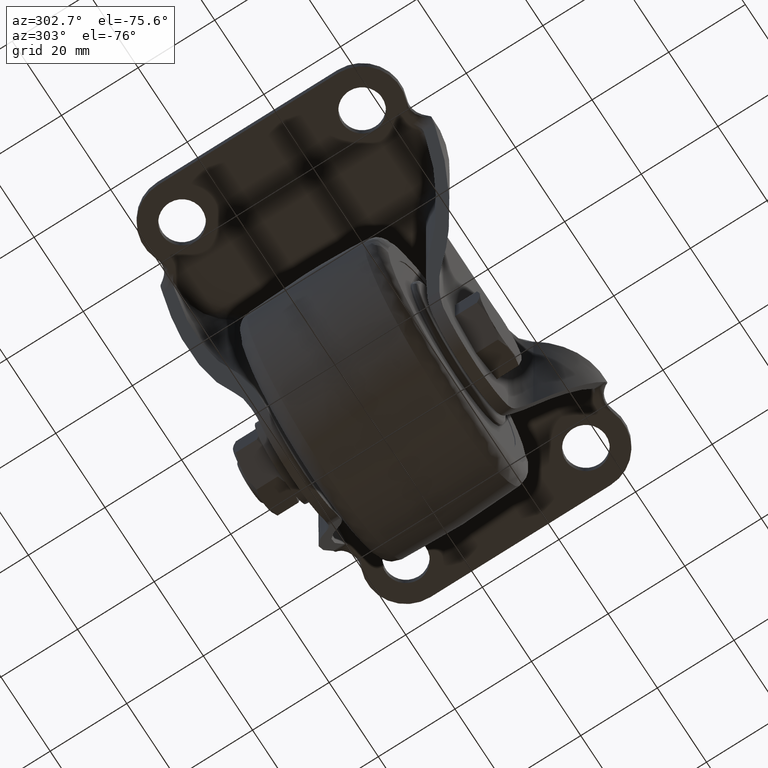
[diagram: clean part render]
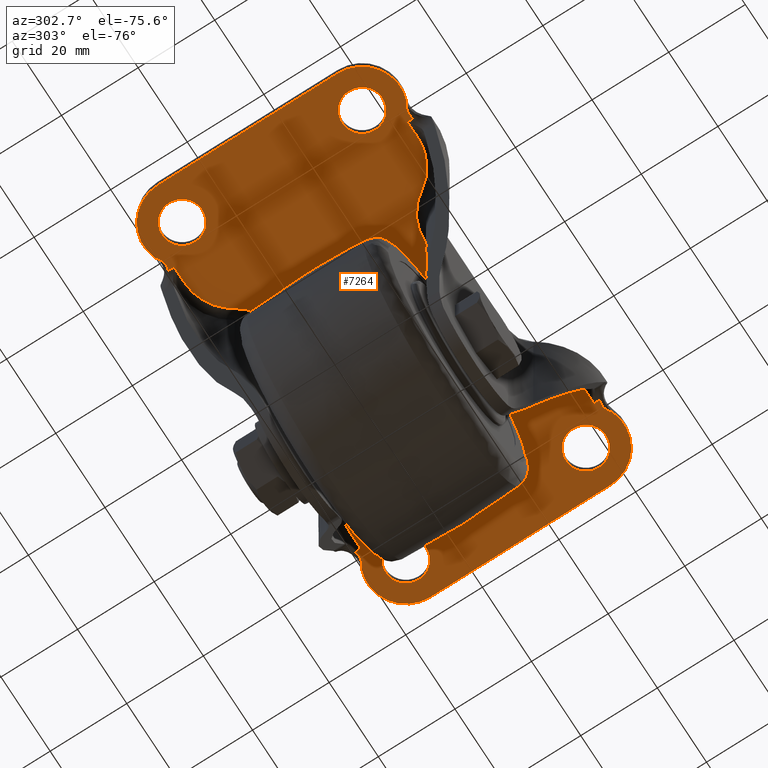
[diagram: same view with one face highlighted and labeled with its STEP entity id]
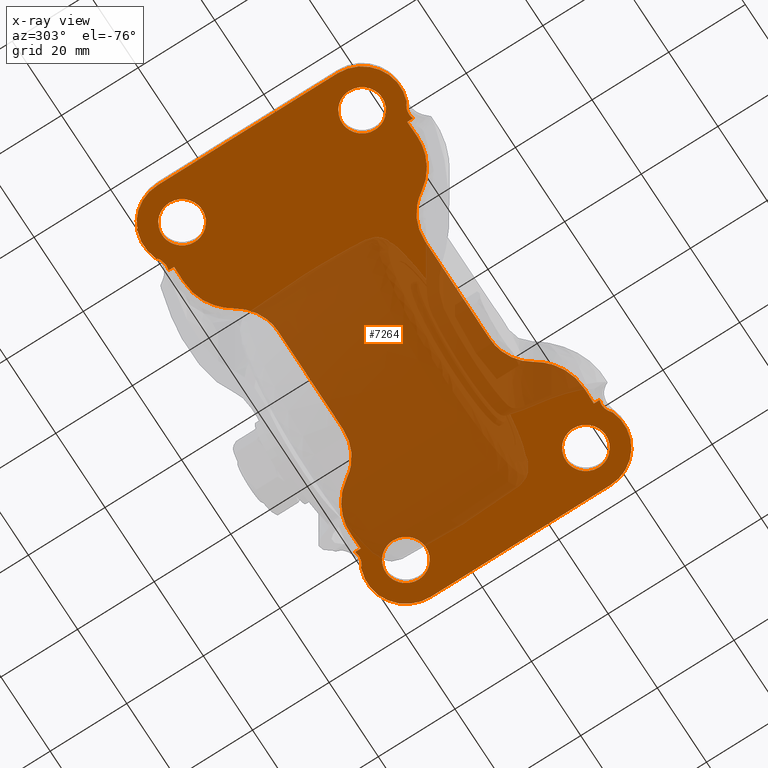
[diagram: x-ray of the same camera — body ghosted, the highlighted face saturated]
A machine part, auxiliary view. The second image highlights one B-rep face of the part: STEP entity #7264.
The next image is the same camera in x-ray: the body ghosted, the highlighted face saturated — about 48% of this face is hidden behind the body in this view.
In plain terms, the highlighted face is a freeform B-spline surface patch.
Its self-contained STEP definition (entity closure, byte-faithful):
#2593=CARTESIAN_POINT('',(-45.179400167103282,28.740207691694081,-2.900000000000000));
#2594=VERTEX_POINT('',#2593);
#2600=CARTESIAN_POINT('',(-40.249905000000012,23.500000000000000,-2.900000000000000));
#2601=VERTEX_POINT('',#2600);
#2602=CARTESIAN_POINT('',(-40.249905000000012,23.500000000000000,-2.900000000000000));
#2603=CARTESIAN_POINT('',(-40.249904999999998,28.438706850935048,-2.900000000000001));
#2604=CARTESIAN_POINT('',(-45.179400167103260,28.740207691694089,-2.900000000000000));
#2612=(BOUNDED_CURVE()B_SPLINE_CURVE(2,(#2602,#2603,#2604),.UNSPECIFIED.,.F.,.U.)B_SPLINE_CURVE_WITH_KNOTS((3,3),(0.500000000000000,0.739332962230815),.UNSPECIFIED.)CURVE()GEOMETRIC_REPRESENTATION_ITEM()RATIONAL_B_SPLINE_CURVE((1.0,0.719603993296233,0.976072041649297))REPRESENTATION_ITEM(''));
#2613=EDGE_CURVE('',#2601,#2594,#2612,.T.);
#2615=CARTESIAN_POINT('',(-45.820409832896729,18.259792308305919,-2.900000000000000));
#2616=VERTEX_POINT('',#2615);
#2617=CARTESIAN_POINT('',(-45.820409832896736,18.259792308305919,-2.900000000000001));
#2618=CARTESIAN_POINT('',(-45.660307007487432,18.250000000000000,-2.900000000000000));
#2619=CARTESIAN_POINT('',(-45.499904999999998,18.250000000000000,-2.900000000000000));
#2620=CARTESIAN_POINT('',(-40.249905000000012,18.250000000000000,-2.900000000000001));
#2621=CARTESIAN_POINT('',(-40.249905000000012,23.500000000000000,-2.900000000000000));
#2629=(BOUNDED_CURVE()B_SPLINE_CURVE(2,(#2617,#2618,#2619,#2620,#2621),.UNSPECIFIED.,.F.,.U.)B_SPLINE_CURVE_WITH_KNOTS((3,2,3),(0.239332962230814,0.250000000000000,0.500000000000000),.UNSPECIFIED.)CURVE()GEOMETRIC_REPRESENTATION_ITEM()RATIONAL_B_SPLINE_CURVE((0.976072041649297,0.987502787890314,1.0,0.707106781186547,1.0))REPRESENTATION_ITEM(''));
#2630=EDGE_CURVE('',#2616,#2601,#2629,.T.);
#2674=CARTESIAN_POINT('',(-50.749904999999998,23.500000000000000,-2.900000000000000));
#2675=VERTEX_POINT('',#2674);
#2676=CARTESIAN_POINT('',(-50.749904999999998,23.500000000000000,-2.900000000000000));
#2677=CARTESIAN_POINT('',(-50.749904999999991,18.561293149064948,-2.900000000000000));
#2678=CARTESIAN_POINT('',(-45.820409832896736,18.259792308305915,-2.899999999999999));
#2686=(BOUNDED_CURVE()B_SPLINE_CURVE(2,(#2676,#2677,#2678),.UNSPECIFIED.,.F.,.U.)B_SPLINE_CURVE_WITH_KNOTS((3,3),(0.0,0.239332962230814),.UNSPECIFIED.)CURVE()GEOMETRIC_REPRESENTATION_ITEM()RATIONAL_B_SPLINE_CURVE((1.0,0.719603993296233,0.976072041649297))REPRESENTATION_ITEM(''));
#2687=EDGE_CURVE('',#2675,#2616,#2686,.T.);
#2689=CARTESIAN_POINT('',(-45.179400167103260,28.740207691694089,-2.900000000000000));
#2690=CARTESIAN_POINT('',(-45.339502992512571,28.750000000000007,-2.900000000000000));
#2691=CARTESIAN_POINT('',(-45.499904999999998,28.750000000000000,-2.900000000000000));
#2692=CARTESIAN_POINT('',(-50.749904999999984,28.750000000000000,-2.900000000000001));
#2693=CARTESIAN_POINT('',(-50.749904999999998,23.500000000000000,-2.900000000000000));
#2701=(BOUNDED_CURVE()B_SPLINE_CURVE(2,(#2689,#2690,#2691,#2692,#2693),.UNSPECIFIED.,.F.,.U.)B_SPLINE_CURVE_WITH_KNOTS((3,2,3),(0.739332962230815,0.750000000000000,1.0),.UNSPECIFIED.)CURVE()GEOMETRIC_REPRESENTATION_ITEM()RATIONAL_B_SPLINE_CURVE((0.976072041649297,0.987502787890315,1.0,0.707106781186547,1.0))REPRESENTATION_ITEM(''));
#2702=EDGE_CURVE('',#2594,#2675,#2701,.T.);
#2775=CARTESIAN_POINT('',(-45.179400167103267,-18.259792308305919,-2.900000000000000));
#2776=VERTEX_POINT('',#2775);
#2782=CARTESIAN_POINT('',(-40.249905000000012,-23.500000000000000,-2.900000000000000));
#2783=VERTEX_POINT('',#2782);
#2784=CARTESIAN_POINT('',(-40.249905000000012,-23.500000000000000,-2.900000000000000));
#2785=CARTESIAN_POINT('',(-40.249904999999998,-18.561293149064937,-2.900000000000001));
#2786=CARTESIAN_POINT('',(-45.179400167103260,-18.259792308305922,-2.900000000000000));
#2794=(BOUNDED_CURVE()B_SPLINE_CURVE(2,(#2784,#2785,#2786),.UNSPECIFIED.,.F.,.U.)B_SPLINE_CURVE_WITH_KNOTS((3,3),(0.500000000000000,0.739332962230815),.UNSPECIFIED.)CURVE()GEOMETRIC_REPRESENTATION_ITEM()RATIONAL_B_SPLINE_CURVE((1.0,0.719603993296233,0.976072041649297))REPRESENTATION_ITEM(''));
#2795=EDGE_CURVE('',#2783,#2776,#2794,.T.);
#2797=CARTESIAN_POINT('',(-45.820409832896729,-28.740207691694081,-2.900000000000000));
#2798=VERTEX_POINT('',#2797);
#2799=CARTESIAN_POINT('',(-45.820409832896736,-28.740207691694085,-2.899999999999999));
#2800=CARTESIAN_POINT('',(-45.660307007487432,-28.750000000000000,-2.900000000000000));
#2801=CARTESIAN_POINT('',(-45.499904999999998,-28.750000000000000,-2.900000000000000));
#2802=CARTESIAN_POINT('',(-40.249905000000012,-28.750000000000000,-2.900000000000001));
#2803=CARTESIAN_POINT('',(-40.249905000000012,-23.500000000000000,-2.900000000000000));
#2811=(BOUNDED_CURVE()B_SPLINE_CURVE(2,(#2799,#2800,#2801,#2802,#2803),.UNSPECIFIED.,.F.,.U.)B_SPLINE_CURVE_WITH_KNOTS((3,2,3),(0.239332962230814,0.250000000000000,0.500000000000000),.UNSPECIFIED.)CURVE()GEOMETRIC_REPRESENTATION_ITEM()RATIONAL_B_SPLINE_CURVE((0.976072041649297,0.987502787890314,1.0,0.707106781186547,1.0))REPRESENTATION_ITEM(''));
#2812=EDGE_CURVE('',#2798,#2783,#2811,.T.);
#2856=CARTESIAN_POINT('',(-50.749904999999998,-23.500000000000000,-2.900000000000000));
#2857=VERTEX_POINT('',#2856);
#2858=CARTESIAN_POINT('',(-50.749904999999998,-23.500000000000000,-2.900000000000000));
#2859=CARTESIAN_POINT('',(-50.749904999999991,-28.438706850935045,-2.900000000000000));
#2860=CARTESIAN_POINT('',(-45.820409832896736,-28.740207691694085,-2.899999999999999));
#2868=(BOUNDED_CURVE()B_SPLINE_CURVE(2,(#2858,#2859,#2860),.UNSPECIFIED.,.F.,.U.)B_SPLINE_CURVE_WITH_KNOTS((3,3),(0.0,0.239332962230814),.UNSPECIFIED.)CURVE()GEOMETRIC_REPRESENTATION_ITEM()RATIONAL_B_SPLINE_CURVE((1.0,0.719603993296233,0.976072041649297))REPRESENTATION_ITEM(''));
#2869=EDGE_CURVE('',#2857,#2798,#2868,.T.);
#2871=CARTESIAN_POINT('',(-45.179400167103260,-18.259792308305922,-2.900000000000000));
#2872=CARTESIAN_POINT('',(-45.339502992512557,-18.250000000000004,-2.900000000000000));
#2873=CARTESIAN_POINT('',(-45.499904999999998,-18.250000000000000,-2.900000000000000));
#2874=CARTESIAN_POINT('',(-50.749904999999984,-18.250000000000000,-2.900000000000001));
#2875=CARTESIAN_POINT('',(-50.749904999999998,-23.500000000000000,-2.900000000000000));
#2883=(BOUNDED_CURVE()B_SPLINE_CURVE(2,(#2871,#2872,#2873,#2874,#2875),.UNSPECIFIED.,.F.,.U.)B_SPLINE_CURVE_WITH_KNOTS((3,2,3),(0.739332962230814,0.750000000000000,1.0),.UNSPECIFIED.)CURVE()GEOMETRIC_REPRESENTATION_ITEM()RATIONAL_B_SPLINE_CURVE((0.976072041649297,0.987502787890314,1.0,0.707106781186547,1.0))REPRESENTATION_ITEM(''));
#2884=EDGE_CURVE('',#2776,#2857,#2883,.T.);
#2957=CARTESIAN_POINT('',(45.820599832896832,28.740207691694081,-2.900000000000000));
#2958=VERTEX_POINT('',#2957);
#2964=CARTESIAN_POINT('',(50.750095000000087,23.500000000000000,-2.900000000000000));
#2965=VERTEX_POINT('',#2964);
#2966=CARTESIAN_POINT('',(50.750095000000087,23.500000000000000,-2.900000000000000));
#2967=CARTESIAN_POINT('',(50.750095000000101,28.438706850935056,-2.900000000000000));
#2968=CARTESIAN_POINT('',(45.820599832896825,28.740207691694081,-2.900000000000000));
#2976=(BOUNDED_CURVE()B_SPLINE_CURVE(2,(#2966,#2967,#2968),.UNSPECIFIED.,.F.,.U.)B_SPLINE_CURVE_WITH_KNOTS((3,3),(0.500000000000000,0.739332962230814),.UNSPECIFIED.)CURVE()GEOMETRIC_REPRESENTATION_ITEM()RATIONAL_B_SPLINE_CURVE((1.0,0.719603993296233,0.976072041649297))REPRESENTATION_ITEM(''));
#2977=EDGE_CURVE('',#2965,#2958,#2976,.T.);
#2979=CARTESIAN_POINT('',(45.179590167103363,18.259792308305919,-2.900000000000000));
#2980=VERTEX_POINT('',#2979);
#2981=CARTESIAN_POINT('',(45.179590167103356,18.259792308305926,-2.900000000000000));
#2982=CARTESIAN_POINT('',(45.339692992512660,18.250000000000004,-2.900000000000001));
#2983=CARTESIAN_POINT('',(45.500095000000087,18.250000000000000,-2.900000000000000));
#2984=CARTESIAN_POINT('',(50.750095000000108,18.250000000000000,-2.900000000000001));
#2985=CARTESIAN_POINT('',(50.750095000000087,23.500000000000000,-2.900000000000000));
#2993=(BOUNDED_CURVE()B_SPLINE_CURVE(2,(#2981,#2982,#2983,#2984,#2985),.UNSPECIFIED.,.F.,.U.)B_SPLINE_CURVE_WITH_KNOTS((3,2,3),(0.239332962230814,0.250000000000000,0.500000000000000),.UNSPECIFIED.)CURVE()GEOMETRIC_REPRESENTATION_ITEM()RATIONAL_B_SPLINE_CURVE((0.976072041649297,0.987502787890314,1.0,0.707106781186547,1.0))REPRESENTATION_ITEM(''));
#2994=EDGE_CURVE('',#2980,#2965,#2993,.T.);
#3038=CARTESIAN_POINT('',(40.250095000000087,23.500000000000000,-2.900000000000000));
#3039=VERTEX_POINT('',#3038);
#3040=CARTESIAN_POINT('',(40.250095000000087,23.500000000000000,-2.900000000000000));
#3041=CARTESIAN_POINT('',(40.250095000000094,18.561293149064948,-2.900000000000000));
#3042=CARTESIAN_POINT('',(45.179590167103377,18.259792308305915,-2.900000000000000));
#3050=(BOUNDED_CURVE()B_SPLINE_CURVE(2,(#3040,#3041,#3042),.UNSPECIFIED.,.F.,.U.)B_SPLINE_CURVE_WITH_KNOTS((3,3),(0.0,0.239332962230815),.UNSPECIFIED.)CURVE()GEOMETRIC_REPRESENTATION_ITEM()RATIONAL_B_SPLINE_CURVE((1.0,0.719603993296233,0.976072041649297))REPRESENTATION_ITEM(''));
#3051=EDGE_CURVE('',#3039,#2980,#3050,.T.);
#3053=CARTESIAN_POINT('',(45.820599832896832,28.740207691694078,-2.900000000000000));
#3054=CARTESIAN_POINT('',(45.660497007487535,28.749999999999996,-2.900000000000000));
#3055=CARTESIAN_POINT('',(45.500095000000087,28.750000000000000,-2.900000000000000));
#3056=CARTESIAN_POINT('',(40.250095000000087,28.750000000000000,-2.900000000000001));
#3057=CARTESIAN_POINT('',(40.250095000000087,23.500000000000000,-2.900000000000000));
#3065=(BOUNDED_CURVE()B_SPLINE_CURVE(2,(#3053,#3054,#3055,#3056,#3057),.UNSPECIFIED.,.F.,.U.)B_SPLINE_CURVE_WITH_KNOTS((3,2,3),(0.739332962230814,0.750000000000000,1.0),.UNSPECIFIED.)CURVE()GEOMETRIC_REPRESENTATION_ITEM()RATIONAL_B_SPLINE_CURVE((0.976072041649297,0.987502787890314,1.0,0.707106781186547,1.0))REPRESENTATION_ITEM(''));
#3066=EDGE_CURVE('',#2958,#3039,#3065,.T.);
#3139=CARTESIAN_POINT('',(45.820599832896832,-18.259792308305919,-2.900000000000000));
#3140=VERTEX_POINT('',#3139);
#3146=CARTESIAN_POINT('',(50.750095000000087,-23.500000000000000,-2.900000000000000));
#3147=VERTEX_POINT('',#3146);
#3148=CARTESIAN_POINT('',(50.750095000000087,-23.500000000000000,-2.900000000000000));
#3149=CARTESIAN_POINT('',(50.750095000000101,-18.561293149064944,-2.900000000000000));
#3150=CARTESIAN_POINT('',(45.820599832896825,-18.259792308305922,-2.900000000000000));
#3158=(BOUNDED_CURVE()B_SPLINE_CURVE(2,(#3148,#3149,#3150),.UNSPECIFIED.,.F.,.U.)B_SPLINE_CURVE_WITH_KNOTS((3,3),(0.500000000000000,0.739332962230814),.UNSPECIFIED.)CURVE()GEOMETRIC_REPRESENTATION_ITEM()RATIONAL_B_SPLINE_CURVE((1.0,0.719603993296233,0.976072041649297))REPRESENTATION_ITEM(''));
#3159=EDGE_CURVE('',#3147,#3140,#3158,.T.);
#3161=CARTESIAN_POINT('',(45.179590167103363,-28.740207691694081,-2.900000000000000));
#3162=VERTEX_POINT('',#3161);
#3163=CARTESIAN_POINT('',(45.179590167103363,-28.740207691694078,-2.900000000000000));
#3164=CARTESIAN_POINT('',(45.339692992512660,-28.749999999999996,-2.900000000000000));
#3165=CARTESIAN_POINT('',(45.500095000000087,-28.750000000000000,-2.900000000000000));
#3166=CARTESIAN_POINT('',(50.750095000000108,-28.750000000000000,-2.900000000000001));
#3167=CARTESIAN_POINT('',(50.750095000000087,-23.500000000000000,-2.900000000000000));
#3175=(BOUNDED_CURVE()B_SPLINE_CURVE(2,(#3163,#3164,#3165,#3166,#3167),.UNSPECIFIED.,.F.,.U.)B_SPLINE_CURVE_WITH_KNOTS((3,2,3),(0.239332962230815,0.250000000000000,0.500000000000000),.UNSPECIFIED.)CURVE()GEOMETRIC_REPRESENTATION_ITEM()RATIONAL_B_SPLINE_CURVE((0.976072041649297,0.987502787890315,1.0,0.707106781186547,1.0))REPRESENTATION_ITEM(''));
#3176=EDGE_CURVE('',#3162,#3147,#3175,.T.);
#3220=CARTESIAN_POINT('',(40.250095000000087,-23.500000000000000,-2.900000000000000));
#3221=VERTEX_POINT('',#3220);
#3222=CARTESIAN_POINT('',(40.250095000000087,-23.500000000000000,-2.900000000000000));
#3223=CARTESIAN_POINT('',(40.250095000000094,-28.438706850935045,-2.900000000000000));
#3224=CARTESIAN_POINT('',(45.179590167103377,-28.740207691694085,-2.900000000000000));
#3232=(BOUNDED_CURVE()B_SPLINE_CURVE(2,(#3222,#3223,#3224),.UNSPECIFIED.,.F.,.U.)B_SPLINE_CURVE_WITH_KNOTS((3,3),(0.0,0.239332962230815),.UNSPECIFIED.)CURVE()GEOMETRIC_REPRESENTATION_ITEM()RATIONAL_B_SPLINE_CURVE((1.0,0.719603993296233,0.976072041649297))REPRESENTATION_ITEM(''));
#3233=EDGE_CURVE('',#3221,#3162,#3232,.T.);
#3235=CARTESIAN_POINT('',(45.820599832896832,-18.259792308305919,-2.900000000000000));
#3236=CARTESIAN_POINT('',(45.660497007487535,-18.249999999999993,-2.900000000000000));
#3237=CARTESIAN_POINT('',(45.500095000000087,-18.250000000000000,-2.900000000000000));
#3238=CARTESIAN_POINT('',(40.250095000000087,-18.250000000000000,-2.900000000000001));
#3239=CARTESIAN_POINT('',(40.250095000000087,-23.500000000000000,-2.900000000000000));
#3247=(BOUNDED_CURVE()B_SPLINE_CURVE(2,(#3235,#3236,#3237,#3238,#3239),.UNSPECIFIED.,.F.,.U.)B_SPLINE_CURVE_WITH_KNOTS((3,2,3),(0.739332962230814,0.750000000000000,1.0),.UNSPECIFIED.)CURVE()GEOMETRIC_REPRESENTATION_ITEM()RATIONAL_B_SPLINE_CURVE((0.976072041649297,0.987502787890314,1.0,0.707106781186547,1.0))REPRESENTATION_ITEM(''));
#3248=EDGE_CURVE('',#3140,#3221,#3247,.T.);
#4378=CARTESIAN_POINT('',(-55.499905000000012,-23.500000000000000,-2.900000000000000));
#4379=VERTEX_POINT('',#4378);
#4385=CARTESIAN_POINT('',(-41.883508983008703,-32.823179628913557,-2.900000000000000));
#4386=VERTEX_POINT('',#4385);
#4387=CARTESIAN_POINT('',(-55.499905000000012,-23.500000000000000,-2.900000000000000));
#4388=CARTESIAN_POINT('',(-55.500278196077062,-24.460316381047360,-2.900000000000012));
#4389=CARTESIAN_POINT('',(-55.246789352338723,-26.203864383957420,-2.899999999999985));
#4390=CARTESIAN_POINT('',(-54.403331376273037,-28.167840847598189,-2.900000000000005));
#4391=CARTESIAN_POINT('',(-53.432262030050147,-29.649935437457540,-2.899999999999999));
#4392=CARTESIAN_POINT('',(-52.470065464343627,-30.729882751617922,-2.900000000000001));
#4393=CARTESIAN_POINT('',(-51.213360474261641,-31.753957774106340,-2.899999999999995));
#4394=CARTESIAN_POINT('',(-49.640076172121461,-32.680563101142923,-2.900000000000027));
#4395=CARTESIAN_POINT('',(-47.687592248241337,-33.343796516754772,-2.899999999999933));
#4396=CARTESIAN_POINT('',(-45.742002344949839,-33.546323332409067,-2.900000000000040));
#4397=CARTESIAN_POINT('',(-43.821186507847912,-33.417892674291522,-2.899999999999959));
#4398=CARTESIAN_POINT('',(-42.613838562457303,-33.106642664920138,-2.900000000000031));
#4399=CARTESIAN_POINT('',(-41.883508983008703,-32.823179628913557,-2.900000000000000));
#4400=B_SPLINE_CURVE_WITH_KNOTS('',3,(#4387,#4388,#4389,#4390,#4391,#4392,#4393,#4394,#4395,#4396,#4397,#4398,#4399),.UNSPECIFIED.,.F.,.U.,(4,1,1,1,1,1,1,1,1,1,4),(0.000000104842020,2.880891366599464,5.231136969330979,6.368343491444483,8.187879028276006,9.552532496265286,11.220401519337230,13.646434593703489,15.693418021507650,17.058079484506351,19.408269017228701),.UNSPECIFIED.);
#4401=EDGE_CURVE('',#4379,#4386,#4400,.T.);
#4538=CARTESIAN_POINT('',(-41.883508782540112,32.823179629200652,-2.900000000000000));
#4539=VERTEX_POINT('',#4538);
#4545=CARTESIAN_POINT('',(-55.499905000000012,23.500000000000000,-2.900000000000000));
#4546=VERTEX_POINT('',#4545);
#4547=CARTESIAN_POINT('',(-41.883508782540112,32.823179629200652,-2.900000000000000));
#4548=CARTESIAN_POINT('',(-42.472492201810233,33.051728680242533,-2.900000000000000));
#4549=CARTESIAN_POINT('',(-43.474114836118147,33.334458169527522,-2.900000000000016));
#4550=CARTESIAN_POINT('',(-45.208512471580200,33.543418200212123,-2.899999999999962));
#4551=CARTESIAN_POINT('',(-46.706254746647652,33.473031460287302,-2.900000000000021));
#4552=CARTESIAN_POINT('',(-48.488756958950113,33.093218006068540,-2.899999999999993));
#4553=CARTESIAN_POINT('',(-50.072682632915821,32.466588435365281,-2.899999999999996));
#4554=CARTESIAN_POINT('',(-51.478683355033482,31.557591632074899,-2.900000000000023));
#4555=CARTESIAN_POINT('',(-52.587854017841458,30.596287733988088,-2.899999999999954));
#4556=CARTESIAN_POINT('',(-53.545068787046830,29.513756623793569,-2.900000000000037));
#4557=CARTESIAN_POINT('',(-54.435588237590352,28.096602617651850,-2.899999999999994));
#4558=CARTESIAN_POINT('',(-55.014836131231689,26.689090475971120,-2.899999999999958));
#4559=CARTESIAN_POINT('',(-55.403779937137493,25.142585529803569,-2.900000000000143));
#4560=CARTESIAN_POINT('',(-55.499973754576381,24.131778392018120,-2.899999999999744));
#4561=CARTESIAN_POINT('',(-55.499905000000012,23.500000000000000,-2.900000000000000));
#4562=B_SPLINE_CURVE_WITH_KNOTS('',3,(#4547,#4548,#4549,#4550,#4551,#4552,#4553,#4554,#4555,#4556,#4557,#4558,#4559,#4560,#4561),.UNSPECIFIED.,.F.,.U.,(4,1,1,1,1,1,1,1,1,1,1,1,4),(0.000000128442966,1.895301773626613,3.108353019985504,5.231137036880631,6.368343568548973,8.566973561792308,10.310593766237620,11.372017595776519,12.964099439703521,14.632017487934050,16.375749248277931,17.512946186762751,19.408269204163879),.UNSPECIFIED.);
#4563=EDGE_CURVE('',#4539,#4546,#4562,.T.);
#4584=CARTESIAN_POINT('',(-55.499905000000012,-23.500000000000000,-2.900000000000000));
#4585=CARTESIAN_POINT('',(-55.499905000000012,23.500000000000000,-2.900000000000000));
#4586=QUASI_UNIFORM_CURVE('',1,(#4584,#4585),.UNSPECIFIED.,.F.,.U.);
#4587=EDGE_CURVE('',#4379,#4546,#4586,.T.);
#4834=CARTESIAN_POINT('',(37.956737375777649,-31.935527551332001,-2.900000000000000));
#4835=VERTEX_POINT('',#4834);
#4923=CARTESIAN_POINT('',(41.883698782540250,-32.823179629200652,-2.900000000000000));
#4924=VERTEX_POINT('',#4923);
#4925=CARTESIAN_POINT('',(41.883698782540250,-32.823179629200652,-2.900000000000000));
#4926=CARTESIAN_POINT('',(41.659141814200837,-32.608881962825578,-2.899999999999994));
#4927=CARTESIAN_POINT('',(41.271877274279852,-32.306934604418409,-2.900000000000009));
#4928=CARTESIAN_POINT('',(40.640401936752987,-31.978961815216849,-2.899999999999994));
#4929=CARTESIAN_POINT('',(40.070575965148301,-31.788191542607411,-2.900000000000004));
#4930=CARTESIAN_POINT('',(39.456173668604563,-31.684887910558050,-2.900000000000000));
#4931=CARTESIAN_POINT('',(38.943915520474079,-31.688315939574430,-2.899999999999994));
#4932=CARTESIAN_POINT('',(38.439070348866650,-31.766785575998941,-2.900000000000020));
#4933=CARTESIAN_POINT('',(38.141281634821752,-31.859454971255730,-2.899999999999976));
#4934=CARTESIAN_POINT('',(37.956737375777649,-31.935527551332001,-2.900000000000000));
#4935=B_SPLINE_CURVE_WITH_KNOTS('',3,(#4925,#4926,#4927,#4928,#4929,#4930,#4931,#4932,#4933,#4934),.UNSPECIFIED.,.F.,.U.,(4,1,1,1,1,1,1,4),(-0.000022366231763,0.931600975056023,1.463929206342538,2.129448872755911,2.728284692009448,3.327148670560575,3.659841711877680,4.258739453512110),.UNSPECIFIED.);
#4936=EDGE_CURVE('',#4924,#4835,#4935,.T.);
#5078=CARTESIAN_POINT('',(-37.956737375777450,-31.935449264833601,-2.900000000000000));
#5079=VERTEX_POINT('',#5078);
#5153=CARTESIAN_POINT('',(-37.956737375777450,-31.935449264833601,-2.900000000000000));
#5154=CARTESIAN_POINT('',(-38.182214440505021,-31.842416278279291,-2.900000000000000));
#5155=CARTESIAN_POINT('',(-38.611272397972279,-31.718497963163749,-2.900000000000004));
#5156=CARTESIAN_POINT('',(-39.322560418277327,-31.669441847246009,-2.899999999999996));
#5157=CARTESIAN_POINT('',(-39.963161588655481,-31.760774847808271,-2.900000000000005));
#5158=CARTESIAN_POINT('',(-40.556453532444067,-31.948333376917919,-2.899999999999996));
#5159=CARTESIAN_POINT('',(-41.198931001303862,-32.254348847326007,-2.900000000000000));
#5160=CARTESIAN_POINT('',(-41.626962574693508,-32.578237809504330,-2.900000000000006));
#5161=CARTESIAN_POINT('',(-41.883508983008703,-32.823179628913557,-2.900000000000000));
#5162=B_SPLINE_CURVE_WITH_KNOTS('',3,(#5153,#5154,#5155,#5156,#5157,#5158,#5159,#5160,#5161),.UNSPECIFIED.,.F.,.U.,(4,1,1,1,1,1,4),(0.000045028657904,0.731973388641534,1.330789462778779,2.129206292043278,2.661608159296021,3.193896359457086,4.258537482647371),.UNSPECIFIED.);
#5163=EDGE_CURVE('',#5079,#4386,#5162,.T.);
#5195=CARTESIAN_POINT('',(-37.956737375777450,31.935449264833700,-2.900000000000000));
#5196=VERTEX_POINT('',#5195);
#5197=CARTESIAN_POINT('',(-41.883508782540112,32.823179629200652,-2.900000000000000));
#5198=CARTESIAN_POINT('',(-41.658965086373541,32.608887283110590,-2.900000000000001));
#5199=CARTESIAN_POINT('',(-41.271722854542517,32.306943642551680,-2.900000000000001));
#5200=CARTESIAN_POINT('',(-40.640276504798031,31.979007333041860,-2.899999999999997));
#5201=CARTESIAN_POINT('',(-40.007246942378117,31.766865182004800,-2.900000000000004));
#5202=CARTESIAN_POINT('',(-39.388873306998192,31.678838741130811,-2.899999999999992));
#5203=CARTESIAN_POINT('',(-38.833578342133968,31.700261596902891,-2.900000000000017));
#5204=CARTESIAN_POINT('',(-38.395620709602007,31.777828460016870,-2.899999999999959));
#5205=CARTESIAN_POINT('',(-38.100286579070982,31.876317786498809,-2.900000000000048));
#5206=CARTESIAN_POINT('',(-37.956737375777450,31.935449264833700,-2.900000000000000));
#5207=B_SPLINE_CURVE_WITH_KNOTS('',3,(#5197,#5198,#5199,#5200,#5201,#5202,#5203,#5204,#5205,#5206),.UNSPECIFIED.,.F.,.U.,(4,1,1,1,1,1,1,4),(-0.000022369624476,0.931560314042801,1.463865319749435,2.129355948104760,2.927786633398884,3.327003474214694,3.792759545489356,4.258553602622427),.UNSPECIFIED.);
#5208=EDGE_CURVE('',#4539,#5196,#5207,.T.);
#6075=CARTESIAN_POINT('',(-37.956737375777450,-30.435054793760852,-2.900000000000000));
#6076=VERTEX_POINT('',#6075);
#6077=CARTESIAN_POINT('',(-37.956737375777450,-30.435054793760852,-2.900000000000000));
#6078=CARTESIAN_POINT('',(-37.956737375777450,-31.935449264833601,-2.900000000000000));
#6079=QUASI_UNIFORM_CURVE('',1,(#6077,#6078),.UNSPECIFIED.,.F.,.U.);
#6080=EDGE_CURVE('',#6076,#5079,#6079,.T.);
#6137=CARTESIAN_POINT('',(37.956737375777649,-30.435057906488101,-2.900000000000000));
#6138=VERTEX_POINT('',#6137);
#6139=CARTESIAN_POINT('',(37.956737375777649,-31.935527551332001,-2.900000000000000));
#6140=CARTESIAN_POINT('',(37.956737375777649,-30.435057906488101,-2.900000000000000));
#6141=QUASI_UNIFORM_CURVE('',1,(#6139,#6140),.UNSPECIFIED.,.F.,.U.);
#6142=EDGE_CURVE('',#4835,#6138,#6141,.T.);
#6206=CARTESIAN_POINT('',(34.091643851339647,30.498262208278899,-2.900000000000000));
#6207=VERTEX_POINT('',#6206);
#6221=CARTESIAN_POINT('',(22.860098161435250,24.397959183673500,-2.900000000000000));
#6222=VERTEX_POINT('',#6221);
#6223=CARTESIAN_POINT('',(22.860098161435229,24.397959183673510,-2.900000000000000));
#6224=CARTESIAN_POINT('',(26.754040745420628,30.618250796936149,-2.900000000000000));
#6225=CARTESIAN_POINT('',(34.091643851339647,30.498262208278920,-2.900000000000000));
#6233=(BOUNDED_CURVE()B_SPLINE_CURVE(2,(#6223,#6224,#6225),.UNSPECIFIED.,.F.,.U.)CURVE()GEOMETRIC_REPRESENTATION_ITEM()QUASI_UNIFORM_CURVE()RATIONAL_B_SPLINE_CURVE((1.0,0.870827910179334,1.0))REPRESENTATION_ITEM(''));
#6234=EDGE_CURVE('',#6222,#6207,#6233,.T.);
#6288=CARTESIAN_POINT('',(37.956737375777649,30.435057906488101,-2.900000000000000));
#6289=VERTEX_POINT('',#6288);
#6326=CARTESIAN_POINT('',(34.091643851339647,30.498262208278899,-2.900000000000000));
#6327=CARTESIAN_POINT('',(37.956737375777649,30.435057906488101,-2.900000000000000));
#6328=QUASI_UNIFORM_CURVE('',1,(#6326,#6327),.UNSPECIFIED.,.F.,.U.);
#6329=EDGE_CURVE('',#6207,#6289,#6328,.T.);
#6378=CARTESIAN_POINT('',(13.112529342704841,-19.100000000000001,-2.900000000000000));
#6379=VERTEX_POINT('',#6378);
#6389=CARTESIAN_POINT('',(22.860098161435250,-24.397959183673450,-2.900000000000000));
#6390=VERTEX_POINT('',#6389);
#6391=CARTESIAN_POINT('',(22.860098161435250,-24.397959183673450,-2.900000000000000));
#6392=CARTESIAN_POINT('',(22.620036814652071,-24.014453309701022,-2.900000000000004));
#6393=CARTESIAN_POINT('',(22.056847052396229,-23.228180479831291,-2.899999999999994));
#6394=CARTESIAN_POINT('',(21.104720813362150,-22.214417255699331,-2.900000000000003));
#6395=CARTESIAN_POINT('',(19.967667347748812,-21.266602710452489,-2.899999999999997));
#6396=CARTESIAN_POINT('',(19.125063406683001,-20.731641389463551,-2.900000000000004));
#6397=CARTESIAN_POINT('',(18.246914691646001,-20.262983596290411,-2.899999999999998));
#6398=CARTESIAN_POINT('',(17.506950753102618,-19.919902192976661,-2.899999999999997));
#6399=CARTESIAN_POINT('',(16.307837419898888,-19.506711002035878,-2.900000000000000));
#6400=CARTESIAN_POINT('',(14.862426061126110,-19.183804531983618,-2.900000000000001));
#6401=CARTESIAN_POINT('',(13.745902800513820,-19.099931650289960,-2.900000000000000));
#6402=CARTESIAN_POINT('',(13.112529342704841,-19.100000000000001,-2.900000000000000));
#6403=B_SPLINE_CURVE_WITH_KNOTS('',3,(#6391,#6392,#6393,#6394,#6395,#6396,#6397,#6398,#6399,#6400,#6401,#6402),.UNSPECIFIED.,.F.,.U.,(4,1,1,1,1,1,1,1,1,4),(0.000011215201683,1.357371664772801,2.895730010110142,4.162630574809270,5.791463579591380,5.882016211835658,7.148863011800980,8.234747147296936,9.682585160587417,11.582936901965130),.UNSPECIFIED.);
#6404=EDGE_CURVE('',#6390,#6379,#6403,.T.);
#6440=CARTESIAN_POINT('',(34.091644293091250,-30.498262201055152,-2.900000000000000));
#6441=VERTEX_POINT('',#6440);
#6457=CARTESIAN_POINT('',(34.091644293091257,-30.498262201055152,-2.900000000000000));
#6458=CARTESIAN_POINT('',(26.754040899988329,-30.618251043846890,-2.900000000000000));
#6459=CARTESIAN_POINT('',(22.860098161435211,-24.397959183673478,-2.900000000000000));
#6467=(BOUNDED_CURVE()B_SPLINE_CURVE(2,(#6457,#6458,#6459),.UNSPECIFIED.,.F.,.U.)CURVE()GEOMETRIC_REPRESENTATION_ITEM()QUASI_UNIFORM_CURVE()RATIONAL_B_SPLINE_CURVE((1.0,0.870827901825918,1.0))REPRESENTATION_ITEM(''));
#6468=EDGE_CURVE('',#6441,#6390,#6467,.T.);
#6487=CARTESIAN_POINT('',(-13.112339139850160,-19.100000000000001,-2.900000000000000));
#6488=VERTEX_POINT('',#6487);
#6502=CARTESIAN_POINT('',(13.112529342704841,-19.100000000000001,-2.900000000000000));
#6503=CARTESIAN_POINT('',(-13.112339139850160,-19.100000000000001,-2.900000000000000));
#6504=QUASI_UNIFORM_CURVE('',1,(#6502,#6503),.UNSPECIFIED.,.F.,.U.);
#6505=EDGE_CURVE('',#6379,#6488,#6504,.T.);
#6526=CARTESIAN_POINT('',(37.956737375777649,-30.435057906488101,-2.900000000000000));
#6527=CARTESIAN_POINT('',(34.091644293091250,-30.498262201055152,-2.900000000000000));
#6528=QUASI_UNIFORM_CURVE('',1,(#6526,#6527),.UNSPECIFIED.,.F.,.U.);
#6529=EDGE_CURVE('',#6138,#6441,#6528,.T.);
#6580=CARTESIAN_POINT('',(-22.859907161435100,-24.397959183673450,-2.900000000000000));
#6581=VERTEX_POINT('',#6580);
#6595=CARTESIAN_POINT('',(-13.112339139850160,-19.100000000000001,-2.900000000000000));
#6596=CARTESIAN_POINT('',(-13.625088621324970,-19.099980811005981,-2.900000000000002));
#6597=CARTESIAN_POINT('',(-14.500036119410220,-19.153118932414170,-2.899999999999993));
#6598=CARTESIAN_POINT('',(-15.957797167990030,-19.406936258527601,-2.900000000000015));
#6599=CARTESIAN_POINT('',(-17.287553584159689,-19.818229685783301,-2.899999999999980));
#6600=CARTESIAN_POINT('',(-18.274115058306961,-20.275805404313711,-2.900000000000008));
#6601=CARTESIAN_POINT('',(-19.150571886732308,-20.747661901779171,-2.899999999999995));
#6602=CARTESIAN_POINT('',(-19.965235304716689,-21.269669173507129,-2.900000000000020));
#6603=CARTESIAN_POINT('',(-21.082509609575251,-22.193489528884299,-2.899999999999966));
#6604=CARTESIAN_POINT('',(-22.039151684093909,-23.203517469315400,-2.899999999999999));
#6605=CARTESIAN_POINT('',(-22.619838957119750,-24.014463348268698,-2.900000000000038));
#6606=CARTESIAN_POINT('',(-22.859907161435100,-24.397959183673450,-2.900000000000000));
#6607=B_SPLINE_CURVE_WITH_KNOTS('',3,(#6595,#6596,#6597,#6598,#6599,#6600,#6601,#6602,#6603,#6604,#6605,#6606),.UNSPECIFIED.,.F.,.U.,(4,1,1,1,1,1,1,1,1,4),(-0.000005343462083,1.538355612955236,2.624262103072745,4.434073469524859,5.700921850622257,5.881962276361717,7.420305148509302,8.596692468523841,10.225538208659669,11.582904752678459),.UNSPECIFIED.);
#6608=EDGE_CURVE('',#6488,#6581,#6607,.T.);
#6632=CARTESIAN_POINT('',(-34.091452774179103,-30.498262209540702,-2.900000000000000));
#6633=VERTEX_POINT('',#6632);
#6647=CARTESIAN_POINT('',(-22.859907161435100,-24.397959183673450,-2.900000000000000));
#6648=CARTESIAN_POINT('',(-26.753849718422245,-30.618250753808415,-2.900000000000000));
#6649=CARTESIAN_POINT('',(-34.091452774179103,-30.498262209540691,-2.900000000000000));
#6657=(BOUNDED_CURVE()B_SPLINE_CURVE(2,(#6647,#6648,#6649),.UNSPECIFIED.,.F.,.U.)CURVE()GEOMETRIC_REPRESENTATION_ITEM()QUASI_UNIFORM_CURVE()RATIONAL_B_SPLINE_CURVE((1.0,0.870827911638419,1.0))REPRESENTATION_ITEM(''));
#6658=EDGE_CURVE('',#6581,#6633,#6657,.T.);
#6681=CARTESIAN_POINT('',(-34.091452774179103,-30.498262209540702,-2.900000000000000));
#6682=CARTESIAN_POINT('',(-37.956737375777450,-30.435054793760852,-2.900000000000000));
#6683=QUASI_UNIFORM_CURVE('',1,(#6681,#6682),.UNSPECIFIED.,.F.,.U.);
#6684=EDGE_CURVE('',#6633,#6076,#6683,.T.);
#7084=CARTESIAN_POINT('',(-61.044354784860481,36.844840790627238,-2.900000000000000));
#7085=CARTESIAN_POINT('',(61.044547762112558,36.844840790627238,-2.900000000000000));
#7086=CARTESIAN_POINT('',(-61.044354784860481,-36.844842587619027,-2.900000000000000));
#7087=CARTESIAN_POINT('',(61.044547762112558,-36.844842587619027,-2.900000000000000));
#7088=B_SPLINE_SURFACE_WITH_KNOTS('',1,1,((#7084,#7086),(#7085,#7087)),.UNSPECIFIED.,.F.,.F.,.U.,(2,2),(2,2),(0.0,122.088902546973000),(0.0,73.689683378246258),.UNSPECIFIED.);
#7089=ORIENTED_EDGE('',*,*,#4563,.F.);
#7090=ORIENTED_EDGE('',*,*,#5208,.T.);
#7091=CARTESIAN_POINT('',(-37.956737375777450,30.435054793760852,-2.900000000000000));
#7092=VERTEX_POINT('',#7091);
#7093=CARTESIAN_POINT('',(-37.956737375777450,31.935449264833700,-2.900000000000000));
#7094=CARTESIAN_POINT('',(-37.956737375777450,30.435054793760852,-2.900000000000000));
#7095=QUASI_UNIFORM_CURVE('',1,(#7093,#7094),.UNSPECIFIED.,.F.,.U.);
#7096=EDGE_CURVE('',#5196,#7092,#7095,.T.);
#7097=ORIENTED_EDGE('',*,*,#7096,.T.);
#7098=CARTESIAN_POINT('',(-34.091453257394051,30.498262201638902,-2.900000000000000));
#7099=VERTEX_POINT('',#7098);
#7100=CARTESIAN_POINT('',(-37.956737375777450,30.435054793760852,-2.900000000000000));
#7101=CARTESIAN_POINT('',(-34.091453257394051,30.498262201638902,-2.900000000000000));
#7102=QUASI_UNIFORM_CURVE('',1,(#7100,#7101),.UNSPECIFIED.,.F.,.U.);
#7103=EDGE_CURVE('',#7092,#7099,#7102,.T.);
#7104=ORIENTED_EDGE('',*,*,#7103,.T.);
#7105=CARTESIAN_POINT('',(-22.859907161435100,24.397959183673500,-2.900000000000000));
#7106=VERTEX_POINT('',#7105);
#7107=CARTESIAN_POINT('',(-34.091453257394051,30.498262201638880,-2.900000000000000));
#7108=CARTESIAN_POINT('',(-26.753849887497907,30.618251023894512,-2.900000000000000));
#7109=CARTESIAN_POINT('',(-22.859907161435121,24.397959183673489,-2.900000000000000));
#7117=(BOUNDED_CURVE()B_SPLINE_CURVE(2,(#7107,#7108,#7109),.UNSPECIFIED.,.F.,.U.)CURVE()GEOMETRIC_REPRESENTATION_ITEM()QUASI_UNIFORM_CURVE()RATIONAL_B_SPLINE_CURVE((1.0,0.870827902500941,1.0))REPRESENTATION_ITEM(''));
#7118=EDGE_CURVE('',#7099,#7106,#7117,.T.);
#7119=ORIENTED_EDGE('',*,*,#7118,.T.);
#7120=CARTESIAN_POINT('',(-13.112338342704700,19.100000000000001,-2.900000000000000));
#7121=VERTEX_POINT('',#7120);
#7122=CARTESIAN_POINT('',(-22.859907161435100,24.397959183673500,-2.900000000000000));
#7123=CARTESIAN_POINT('',(-22.619844551782052,24.014449605457269,-2.899999999999997));
#7124=CARTESIAN_POINT('',(-22.056639870413740,23.228212551250770,-2.900000000000001));
#7125=CARTESIAN_POINT('',(-20.980443063852960,22.082076109147330,-2.900000000000005));
#7126=CARTESIAN_POINT('',(-19.842953054081711,21.179009584198891,-2.899999999999996));
#7127=CARTESIAN_POINT('',(-18.991128618049650,20.661957174898500,-2.900000000000007));
#7128=CARTESIAN_POINT('',(-18.274128271932341,20.275683584734971,-2.899999999999988));
#7129=CARTESIAN_POINT('',(-17.397172762922061,19.869029509832210,-2.900000000000009));
#7130=CARTESIAN_POINT('',(-16.075631723762399,19.436981540679160,-2.899999999999949));
#7131=CARTESIAN_POINT('',(-14.620712654537600,19.160342092711730,-2.900000000000026));
#7132=CARTESIAN_POINT('',(-13.625094333518630,19.099996363041150,-2.899999999999999));
#7133=CARTESIAN_POINT('',(-13.112338342704700,19.100000000000001,-2.900000000000000));
#7134=B_SPLINE_CURVE_WITH_KNOTS('',3,(#7122,#7123,#7124,#7125,#7126,#7127,#7128,#7129,#7130,#7131,#7132,#7133),.UNSPECIFIED.,.F.,.U.,(4,1,1,1,1,1,1,1,1,4),(0.000011215203049,1.357371664773455,2.895730010110414,4.705569153966903,5.700960979498230,5.882016211835790,7.148863011800902,8.596706830917562,10.044577354730960,11.582936901964541),.UNSPECIFIED.);
#7135=EDGE_CURVE('',#7106,#7121,#7134,.T.);
#7136=ORIENTED_EDGE('',*,*,#7135,.T.);
#7137=CARTESIAN_POINT('',(13.112528927084121,19.100000000000001,-2.900000000000000));
#7138=VERTEX_POINT('',#7137);
#7139=CARTESIAN_POINT('',(-13.112338342704700,19.100000000000001,-2.900000000000000));
#7140=CARTESIAN_POINT('',(13.112528927084121,19.100000000000001,-2.900000000000000));
#7141=QUASI_UNIFORM_CURVE('',1,(#7139,#7140),.UNSPECIFIED.,.F.,.U.);
#7142=EDGE_CURVE('',#7121,#7138,#7141,.T.);
#7143=ORIENTED_EDGE('',*,*,#7142,.T.);
#7144=CARTESIAN_POINT('',(13.112528927084121,19.100000000000001,-2.900000000000000));
#7145=CARTESIAN_POINT('',(13.625279867023330,19.099987060838409,-2.899999999999985));
#7146=CARTESIAN_POINT('',(14.620908372906291,19.160398990779409,-2.900000000000024));
#7147=CARTESIAN_POINT('',(16.075800162542340,19.437116383156919,-2.899999999999984));
#7148=CARTESIAN_POINT('',(17.397324452393690,19.869205131260511,-2.899999999999998));
#7149=CARTESIAN_POINT('',(18.246887250850321,20.263105429879019,-2.900000000000006));
#7150=CARTESIAN_POINT('',(19.231675689573560,20.788255108344579,-2.899999999999995));
#7151=CARTESIAN_POINT('',(20.041094608416600,21.321056979964741,-2.900000000000012));
#7152=CARTESIAN_POINT('',(21.165885280878609,22.281283114934961,-2.899999999999966));
#7153=CARTESIAN_POINT('',(22.039327776426290,23.203564959064600,-2.900000000000092));
#7154=CARTESIAN_POINT('',(22.620032843439379,24.014453301853429,-2.899999999999930));
#7155=CARTESIAN_POINT('',(22.860098161435250,24.397959183673500,-2.900000000000000));
#7156=B_SPLINE_CURVE_WITH_KNOTS('',3,(#7144,#7145,#7146,#7147,#7148,#7149,#7150,#7151,#7152,#7153,#7154,#7155),.UNSPECIFIED.,.F.,.U.,(4,1,1,1,1,1,1,1,1,4),(-0.000005343467214,1.538355774802877,2.986228237995977,4.434073936025443,5.700922450401371,5.791469926448436,7.782269336421900,8.596693372978855,10.225539284484020,11.582905971309691),.UNSPECIFIED.);
#7157=EDGE_CURVE('',#7138,#6222,#7156,.T.);
#7158=ORIENTED_EDGE('',*,*,#7157,.T.);
#7159=ORIENTED_EDGE('',*,*,#6234,.T.);
#7160=ORIENTED_EDGE('',*,*,#6329,.T.);
#7161=CARTESIAN_POINT('',(37.956737375777649,31.935527551332200,-2.900000000000000));
#7162=VERTEX_POINT('',#7161);
#7163=CARTESIAN_POINT('',(37.956737375777649,30.435057906488101,-2.900000000000000));
#7164=CARTESIAN_POINT('',(37.956737375777649,31.935527551332200,-2.900000000000000));
#7165=QUASI_UNIFORM_CURVE('',1,(#7163,#7164),.UNSPECIFIED.,.F.,.U.);
#7166=EDGE_CURVE('',#6289,#7162,#7165,.T.);
#7167=ORIENTED_EDGE('',*,*,#7166,.T.);
#7168=CARTESIAN_POINT('',(41.883698983008948,32.823179628913557,-2.900000000000000));
#7169=VERTEX_POINT('',#7168);
#7170=CARTESIAN_POINT('',(37.956737375777649,31.935527551332200,-2.900000000000000));
#7171=CARTESIAN_POINT('',(38.182230267228583,31.842455226304811,-2.900000000000004));
#7172=CARTESIAN_POINT('',(38.568385829997702,31.731001678033500,-2.899999999999996));
#7173=CARTESIAN_POINT('',(39.077827362722473,31.684847718508980,-2.900000000000004));
#7174=CARTESIAN_POINT('',(39.543957960392092,31.699859858882029,-2.899999999999994));
#7175=CARTESIAN_POINT('',(40.026725920918892,31.780910897966528,-2.900000000000007));
#7176=CARTESIAN_POINT('',(40.556586198493392,31.948303963220141,-2.899999999999997));
#7177=CARTESIAN_POINT('',(41.199044638211653,32.254361151008851,-2.900000000000002));
#7178=CARTESIAN_POINT('',(41.627179632804207,32.578215605990529,-2.900000000000002));
#7179=CARTESIAN_POINT('',(41.883698983008948,32.823179628913557,-2.900000000000000));
#7180=B_SPLINE_CURVE_WITH_KNOTS('',3,(#7170,#7171,#7172,#7173,#7174,#7175,#7176,#7177,#7178,#7179),.UNSPECIFIED.,.F.,.U.,(4,1,1,1,1,1,1,4),(0.000045029127845,0.732005334122957,1.197791883452916,1.530473120197029,2.129299220503083,2.661724319371615,3.194035750784138,4.258723333114174),.UNSPECIFIED.);
#7181=EDGE_CURVE('',#7162,#7169,#7180,.T.);
#7182=ORIENTED_EDGE('',*,*,#7181,.T.);
#7183=CARTESIAN_POINT('',(55.500095000000087,23.500000000000000,-2.900000000000000));
#7184=VERTEX_POINT('',#7183);
#7185=CARTESIAN_POINT('',(55.500095000000087,23.500000000000000,-2.900000000000000));
#7186=CARTESIAN_POINT('',(55.500132289537547,24.081222044430561,-2.899999999999993));
#7187=CARTESIAN_POINT('',(55.387479727825323,25.370054431887301,-2.900000000000012));
#7188=CARTESIAN_POINT('',(54.902062524735868,27.055054374102181,-2.899999999999991));
#7189=CARTESIAN_POINT('',(54.167445735611253,28.556830855535210,-2.900000000000007));
#7190=CARTESIAN_POINT('',(53.310189030306020,29.812803034547031,-2.900000000000004));
#7191=CARTESIAN_POINT('',(52.089717349401532,31.101834810681542,-2.899999999999972));
#7192=CARTESIAN_POINT('',(50.665751388082278,32.125128493952062,-2.900000000000020));
#7193=CARTESIAN_POINT('',(49.041988192289267,32.899392708830291,-2.899999999999992));
#7194=CARTESIAN_POINT('',(47.506446383192163,33.344241880800503,-2.900000000000015));
#7195=CARTESIAN_POINT('',(45.945514706592107,33.524773275405757,-2.899999999999972));
#7196=CARTESIAN_POINT('',(44.071857237102648,33.470739694111991,-2.900000000000045));
#7197=CARTESIAN_POINT('',(42.731792312232422,33.152538170950663,-2.899999999999986));
#7198=CARTESIAN_POINT('',(41.883698983008948,32.823179628913557,-2.900000000000000));
#7199=B_SPLINE_CURVE_WITH_KNOTS('',3,(#7185,#7186,#7187,#7188,#7189,#7190,#7191,#7192,#7193,#7194,#7195,#7196,#7197,#7198),.UNSPECIFIED.,.F.,.U.,(4,1,1,1,1,1,1,1,1,1,1,4),(0.000000104869454,1.743674439379536,3.866480237556175,5.231136969350887,6.747429766747944,8.415348317539387,10.538065752028560,11.978510254574021,13.798061335387640,15.314339675575431,16.678998238071401,19.408269017228420),.UNSPECIFIED.);
#7200=EDGE_CURVE('',#7184,#7169,#7199,.T.);
#7201=ORIENTED_EDGE('',*,*,#7200,.F.);
#7202=CARTESIAN_POINT('',(55.500095000000087,-23.500000000000000,-2.900000000000000));
#7203=VERTEX_POINT('',#7202);
#7204=CARTESIAN_POINT('',(55.500095000000087,23.500000000000000,-2.900000000000000));
#7205=CARTESIAN_POINT('',(55.500095000000087,-23.500000000000000,-2.900000000000000));
#7206=QUASI_UNIFORM_CURVE('',1,(#7204,#7205),.UNSPECIFIED.,.F.,.U.);
#7207=EDGE_CURVE('',#7184,#7203,#7206,.T.);
#7208=ORIENTED_EDGE('',*,*,#7207,.T.);
#7209=CARTESIAN_POINT('',(41.883698782540250,-32.823179629200652,-2.900000000000000));
#7210=CARTESIAN_POINT('',(42.543361894570978,-33.079189013954789,-2.900000000000004));
#7211=CARTESIAN_POINT('',(43.843707484082309,-33.430323913080727,-2.899999999999991));
#7212=CARTESIAN_POINT('',(45.642442842608943,-33.543768578544082,-2.899999999999995));
#7213=CARTESIAN_POINT('',(47.381502322875448,-33.369247464586600,-2.900000000000005));
#7214=CARTESIAN_POINT('',(49.169718999716267,-32.880604851516040,-2.900000000000001));
#7215=CARTESIAN_POINT('',(51.000815641066438,-31.938221505052521,-2.899999999999989));
#7216=CARTESIAN_POINT('',(52.555903145847722,-30.670836206824859,-2.899999999999981));
#7217=CARTESIAN_POINT('',(53.762010960869283,-29.231558821555200,-2.900000000000033));
#7218=CARTESIAN_POINT('',(54.562630403402288,-27.818555507437122,-2.899999999999978));
#7219=CARTESIAN_POINT('',(55.283594339855860,-25.925766222784009,-2.900000000000052));
#7220=CARTESIAN_POINT('',(55.500649379194570,-24.510924705793560,-2.899999999999891));
#7221=CARTESIAN_POINT('',(55.500095000000087,-23.500000000000000,-2.900000000000000));
#7222=B_SPLINE_CURVE_WITH_KNOTS('',3,(#7209,#7210,#7211,#7212,#7213,#7214,#7215,#7216,#7217,#7218,#7219,#7220,#7221),.UNSPECIFIED.,.F.,.U.,(4,1,1,1,1,1,1,1,1,1,4),(0.000000128443542,2.122772359493048,4.018108687032816,5.382763958228207,7.353924178967157,9.552532600127199,11.523636923967819,13.343184283373370,15.162714661478921,16.375749248278360,19.408269204163819),.UNSPECIFIED.);
#7223=EDGE_CURVE('',#4924,#7203,#7222,.T.);
#7224=ORIENTED_EDGE('',*,*,#7223,.F.);
#7225=ORIENTED_EDGE('',*,*,#4936,.T.);
#7226=ORIENTED_EDGE('',*,*,#6142,.T.);
#7227=ORIENTED_EDGE('',*,*,#6529,.T.);
#7228=ORIENTED_EDGE('',*,*,#6468,.T.);
#7229=ORIENTED_EDGE('',*,*,#6404,.T.);
#7230=ORIENTED_EDGE('',*,*,#6505,.T.);
#7231=ORIENTED_EDGE('',*,*,#6608,.T.);
#7232=ORIENTED_EDGE('',*,*,#6658,.T.);
#7233=ORIENTED_EDGE('',*,*,#6684,.T.);
#7234=ORIENTED_EDGE('',*,*,#6080,.T.);
#7235=ORIENTED_EDGE('',*,*,#5163,.T.);
#7236=ORIENTED_EDGE('',*,*,#4401,.F.);
#7237=ORIENTED_EDGE('',*,*,#4587,.T.);
#7238=EDGE_LOOP('',(#7089,#7090,#7097,#7104,#7119,#7136,#7143,#7158,#7159,#7160,#7167,#7182,#7201,#7208,#7224,#7225,#7226,#7227,#7228,#7229,#7230,#7231,#7232,#7233,#7234,#7235,#7236,#7237));
#7239=FACE_OUTER_BOUND('',#7238,.T.);
#7240=ORIENTED_EDGE('',*,*,#3159,.T.);
#7241=ORIENTED_EDGE('',*,*,#3248,.T.);
#7242=ORIENTED_EDGE('',*,*,#3233,.T.);
#7243=ORIENTED_EDGE('',*,*,#3176,.T.);
#7244=EDGE_LOOP('',(#7240,#7241,#7242,#7243));
#7245=FACE_BOUND('',#7244,.T.);
#7246=ORIENTED_EDGE('',*,*,#2977,.T.);
#7247=ORIENTED_EDGE('',*,*,#3066,.T.);
#7248=ORIENTED_EDGE('',*,*,#3051,.T.);
#7249=ORIENTED_EDGE('',*,*,#2994,.T.);
#7250=EDGE_LOOP('',(#7246,#7247,#7248,#7249));
#7251=FACE_BOUND('',#7250,.T.);
#7252=ORIENTED_EDGE('',*,*,#2795,.T.);
#7253=ORIENTED_EDGE('',*,*,#2884,.T.);
#7254=ORIENTED_EDGE('',*,*,#2869,.T.);
#7255=ORIENTED_EDGE('',*,*,#2812,.T.);
#7256=EDGE_LOOP('',(#7252,#7253,#7254,#7255));
#7257=FACE_BOUND('',#7256,.T.);
#7258=ORIENTED_EDGE('',*,*,#2613,.T.);
#7259=ORIENTED_EDGE('',*,*,#2702,.T.);
#7260=ORIENTED_EDGE('',*,*,#2687,.T.);
#7261=ORIENTED_EDGE('',*,*,#2630,.T.);
#7262=EDGE_LOOP('',(#7258,#7259,#7260,#7261));
#7263=FACE_BOUND('',#7262,.T.);
#7264=ADVANCED_FACE('',(#7239,#7245,#7251,#7257,#7263),#7088,.T.);